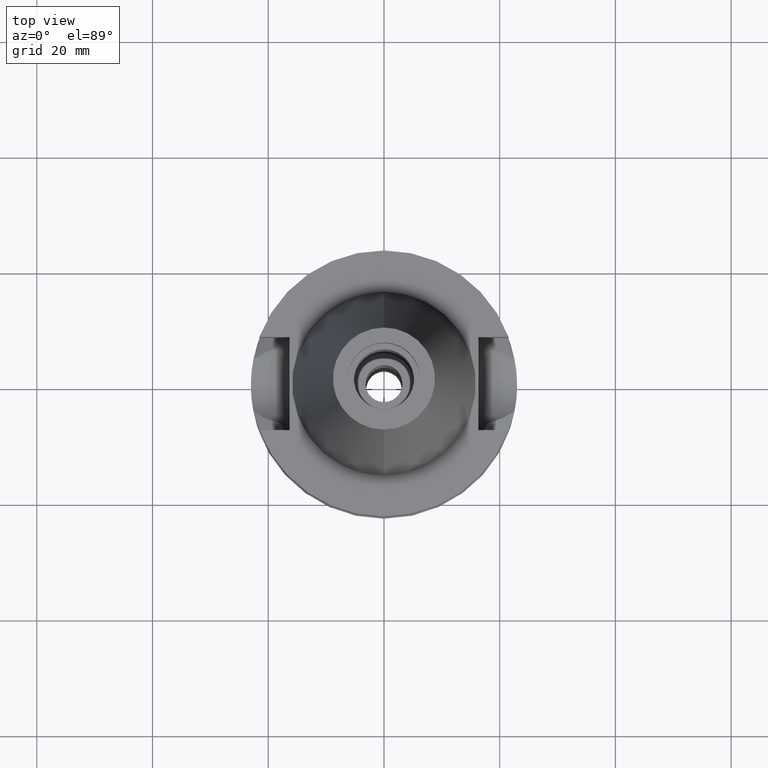
[diagram: clean part render]
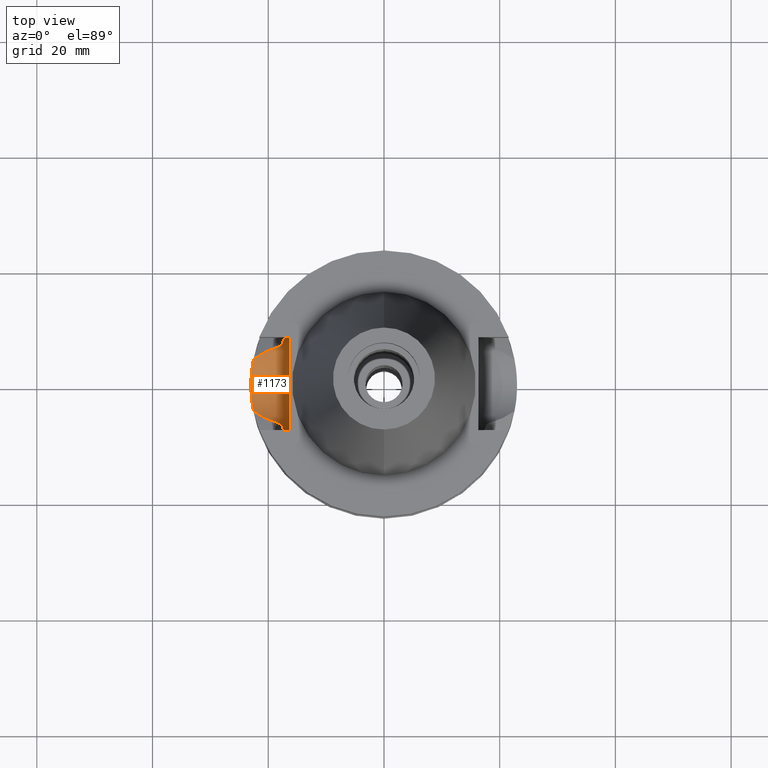
[diagram: same view with one face highlighted and labeled with its STEP entity id]
A machine part, top view. The second image highlights one B-rep face of the part: STEP entity #1173.
In plain terms, the highlighted cylindrical surface (partial cylindrical patch) has radius 8.05 mm, axis along (-1, 0, 0).
Its self-contained STEP definition (entity closure, byte-faithful):
#7 = CARTESIAN_POINT ( 'NONE',  ( -20.37105958657650717, 5.758959081755839371, -16.57485834277300896 ) ) ;
#10 = CARTESIAN_POINT ( 'NONE',  ( -22.88402643636988643, -2.325754021695328966, -18.65674074075245770 ) ) ;
#35 = CARTESIAN_POINT ( 'NONE',  ( -22.96114436732786146, -1.378457862027962388, -18.88353429848299214 ) ) ;
#36 = CARTESIAN_POINT ( 'NONE',  ( -20.57646176026337059, -5.660435152934573999, -16.67383415754710896 ) ) ;
#55 = CARTESIAN_POINT ( 'NONE',  ( -17.51267293753970478, -7.374837336396589116, -14.18047319991323896 ) ) ;
#57 = CARTESIAN_POINT ( 'NONE',  ( -18.96930827938999897, 8.050001278045002095, -10.94999977538999936 ) ) ;
#88 = CARTESIAN_POINT ( 'NONE',  ( -17.75928303705000033, -6.758398853744999712, -15.32339055352999857 ) ) ;
#121 = CARTESIAN_POINT ( 'NONE',  ( -17.62306403126441623, -7.108365558698733544, -14.74095341376021473 ) ) ;
#152 = VERTEX_POINT ( 'NONE', #2197 ) ;
#157 = EDGE_CURVE ( 'NONE', #630, #322, #2649, .T. ) ;
#175 = CARTESIAN_POINT ( 'NONE',  ( -16.29999999999999716, -8.050000000000000711, -10.94999999999999929 ) ) ;
#198 = DIRECTION ( 'NONE',  ( 1.000000000000000000, 0.0000000000000000000, 0.0000000000000000000 ) ) ;
#213 = CARTESIAN_POINT ( 'NONE',  ( -22.89849815869771987, -2.179392640264593339, -18.69965624314833263 ) ) ;
#235 = CARTESIAN_POINT ( 'NONE',  ( -22.95396285075072029, 1.531416406263037100, -18.86284724088618248 ) ) ;
#244 = CARTESIAN_POINT ( 'NONE',  ( -20.59862497873976395, -5.649607642145396902, -16.68451822106968763 ) ) ;
#267 = EDGE_CURVE ( 'NONE', #1930, #2862, #362, .T. ) ;
#277 = LINE ( 'NONE', #57, #2704 ) ;
#322 = VERTEX_POINT ( 'NONE', #2556 ) ;
#357 = CARTESIAN_POINT ( 'NONE',  ( -18.96933606546000206, -8.049994318143998129, -10.95000099914000025 ) ) ;
#362 = B_SPLINE_CURVE_WITH_KNOTS ( 'NONE', 3,
 ( #2885, #866, #1567, #1537, #1787, #885, #1555, #711, #1404, #1608, #1153, #1592, #2055, #1825, #728 ),
 .UNSPECIFIED., .F., .F.,
 ( 4, 2, 2, 1, 1, 1, 2, 2, 4 ),
 ( 0.0000000000000000000, 0.2499999999999890088, 0.3749999999999836242, 0.4374999999999807931, 0.4687499999999801825, 0.4843749999999797384, 0.4921874999999804046, 0.4999999999999810152, 1.000000000000000000 ),
 .UNSPECIFIED. ) ;
#373 = EDGE_LOOP ( 'NONE', ( #850, #2608, #2280, #2097, #1101, #1059, #1708, #1918, #1671, #398 ) ) ;
#398 = ORIENTED_EDGE ( 'NONE', *, *, #1591, .T. ) ;
#425 = CARTESIAN_POINT ( 'NONE',  ( -22.94868690431086122, -1.573057305262965055, -18.84731829897561539 ) ) ;
#438 = B_SPLINE_CURVE_WITH_KNOTS ( 'NONE', 3,
 ( #1513, #2884, #1985, #1300 ),
 .UNSPECIFIED., .F., .F.,
 ( 4, 4 ),
 ( 0.0000000000000000000, 1.000000000000000000 ),
 .UNSPECIFIED. ) ;
#443 = CARTESIAN_POINT ( 'NONE',  ( -22.89141392999098557, -2.251876405495350397, -18.67866006598378092 ) ) ;
#460 = CARTESIAN_POINT ( 'NONE',  ( -23.00137289315239641, -0.4076242066965087285, -18.99876958677882755 ) ) ;
#462 = CARTESIAN_POINT ( 'NONE',  ( -22.27195724436747781, -4.695828194929926092, -17.49326580463720049 ) ) ;
#463 = AXIS2_PLACEMENT_3D ( 'NONE', #495, #1389, #2293 ) ;
#469 = CARTESIAN_POINT ( 'NONE',  ( -18.28224336498320923, 6.597212184853886718, -15.57247962639817551 ) ) ;
#473 = CARTESIAN_POINT ( 'NONE',  ( -20.64598670963935589, -5.626336288312779210, -16.70735231758337846 ) ) ;
#486 = CARTESIAN_POINT ( 'NONE',  ( -22.70532447095174788, -3.756029773028041419, -18.12442173740278406 ) ) ;
#495 = CARTESIAN_POINT ( 'NONE',  ( -16.29999999999999716, 1.981478521019999946E-14, -10.94999999999999929 ) ) ;
#539 = FACE_OUTER_BOUND ( 'NONE', #373, .T. ) ;
#544 = B_SPLINE_CURVE_WITH_KNOTS ( 'NONE', 3,
 ( #2483, #462, #2034, #1147, #2712, #936, #2269, #473, #244, #36, #2725, #1603, #2507 ),
 .UNSPECIFIED., .F., .F.,
 ( 4, 2, 1, 1, 1, 2, 2, 4 ),
 ( 0.0000000000000000000, 0.2500000000000122680, 0.3750000000000187073, 0.4375000000000215938, 0.4687500000000229261, 0.4843750000000227596, 0.5000000000000225375, 1.000000000000000000 ),
 .UNSPECIFIED. ) ;
#559 = CARTESIAN_POINT ( 'NONE',  ( -17.42359123886436123, -7.582153974576828936, -13.65435555158421899 ) ) ;
#561 = CARTESIAN_POINT ( 'NONE',  ( -17.23729139246000130, -7.996491147606000105, -11.87660607723999995 ) ) ;
#567 = CARTESIAN_POINT ( 'NONE',  ( -16.29999999999999716, 1.981478521019999946E-14, -10.94999999999999929 ) ) ;
#621 = B_SPLINE_CURVE_WITH_KNOTS ( 'NONE', 3,
 ( #88, #1420, #121, #2568, #55, #1018, #1214, #2755, #952, #2367, #1637, #559, #2782, #2120, #1911 ),
 .UNSPECIFIED., .F., .F.,
 ( 4, 2, 2, 1, 1, 1, 2, 2, 4 ),
 ( 0.0000000000000000000, 0.2500000000000050515, 0.3750000000000075495, 0.4375000000000080491, 0.4687500000000077716, 0.4843750000000083822, 0.4921875000000081046, 0.5000000000000077716, 1.000000000000000000 ),
 .UNSPECIFIED. ) ;
#630 = VERTEX_POINT ( 'NONE', #2330 ) ;
#649 = CARTESIAN_POINT ( 'NONE',  ( -20.49989886104092207, 5.697507611570140185, -16.63693342957507326 ) ) ;
#660 = CARTESIAN_POINT ( 'NONE',  ( -22.87656963739355831, 2.398009204690335405, -18.63456619442488460 ) ) ;
#662 = VERTEX_POINT ( 'NONE', #1446 ) ;
#668 = CARTESIAN_POINT ( 'NONE',  ( -22.86974498650314658, 2.462640222853216709, -18.61429980678051521 ) ) ;
#680 = CARTESIAN_POINT ( 'NONE',  ( -22.85301127379106845, 2.614619028431492964, -18.56452842529814262 ) ) ;
#681 = CARTESIAN_POINT ( 'NONE',  ( -17.23729139246000130, -7.996491147606000105, -11.87660607723999995 ) ) ;
#711 = CARTESIAN_POINT ( 'NONE',  ( -17.40246475577188789, 7.630563838159316603, -13.51509474698682034 ) ) ;
#728 = CARTESIAN_POINT ( 'NONE',  ( -17.75928303705000033, 6.758398853744999712, -15.32339055352999857 ) ) ;
#850 = ORIENTED_EDGE ( 'NONE', *, *, #1642, .T. ) ;
#866 = CARTESIAN_POINT ( 'NONE',  ( -17.25277258100026501, 7.963111049424388632, -12.16468845982267766 ) ) ;
#885 = CARTESIAN_POINT ( 'NONE',  ( -17.36837036077780283, 7.707981441125066446, -13.27282778250319062 ) ) ;
#898 = CARTESIAN_POINT ( 'NONE',  ( -22.80396809543739778, 3.013367451515033490, -18.41713961940294197 ) ) ;
#905 = CARTESIAN_POINT ( 'NONE',  ( -16.29999999999999716, 8.050000000000000711, -10.94999999999999929 ) ) ;
#936 = CARTESIAN_POINT ( 'NONE',  ( -20.87994658972001361, -5.509147439525087009, -16.82019445110367428 ) ) ;
#943 = CARTESIAN_POINT ( 'NONE',  ( -20.52709696620491542, 5.684391039338787976, -16.65004078365418039 ) ) ;
#952 = CARTESIAN_POINT ( 'NONE',  ( -17.43107261325455681, -7.564952459189426826, -13.70218543622962493 ) ) ;
#958 = B_SPLINE_CURVE_WITH_KNOTS ( 'NONE', 3,
 ( #2062, #2256, #1108, #2724, #898, #1324, #680, #668, #660, #2246, #1365, #2468, #235, #1602, #2494, #460, #2457, #35, #425, #1341, #2711, #213, #443, #2025, #10, #1818, #486, #2012 ),
 .UNSPECIFIED., .F., .F.,
 ( 4, 2, 2, 1, 1, 2, 2, 2, 2, 2, 2, 1, 1, 2, 2, 4 ),
 ( 0.0000000000000000000, 0.1250000000000028311, 0.1875000000000044686, 0.2187500000000052458, 0.2343750000000055234, 0.2421875000000056899, 0.2500000000000058287, 0.3750000000000051070, 0.5000000000000043299, 0.6250000000000034417, 0.6875000000000031086, 0.7187500000000031086, 0.7343750000000028866, 0.7421875000000027756, 0.7500000000000027756, 1.000000000000000000 ),
 .UNSPECIFIED. ) ;
#1018 = CARTESIAN_POINT ( 'NONE',  ( -17.47649152886676660, -7.459745426285464553, -13.97656883011597984 ) ) ;
#1039 = B_SPLINE_CURVE_WITH_KNOTS ( 'NONE', 3,
 ( #561, #2383, #1251, #357 ),
 .UNSPECIFIED., .F., .F.,
 ( 4, 4 ),
 ( 0.0000000000000000000, 1.000000000000000000 ),
 .UNSPECIFIED. ) ;
#1042 = VERTEX_POINT ( 'NONE', #2706 ) ;
#1059 = ORIENTED_EDGE ( 'NONE', *, *, #2461, .T. ) ;
#1100 = CARTESIAN_POINT ( 'NONE',  ( -17.75928303705000033, 6.758398853744999712, -15.32339055352999857 ) ) ;
#1101 = ORIENTED_EDGE ( 'NONE', *, *, #1946, .F. ) ;
#1108 = CARTESIAN_POINT ( 'NONE',  ( -22.69786555316973420, 3.742247097983885773, -18.08863856139490522 ) ) ;
#1119 = EDGE_CURVE ( 'NONE', #2862, #152, #1765, .T. ) ;
#1147 = CARTESIAN_POINT ( 'NONE',  ( -21.45852312804064610, -5.196222814916794164, -17.09964353470252618 ) ) ;
#1153 = CARTESIAN_POINT ( 'NONE',  ( -17.41936507454833460, 7.591859783524955496, -13.62698761801225444 ) ) ;
#1173 = ADVANCED_FACE ( 'NONE', ( #539 ), #1371, .F. ) ;
#1214 = CARTESIAN_POINT ( 'NONE',  ( -17.45914586045512706, -7.500150295201239992, -13.87559705986645220 ) ) ;
#1251 = CARTESIAN_POINT ( 'NONE',  ( -18.30531220829895389, -8.049999956197662954, -11.30291241008408853 ) ) ;
#1300 = CARTESIAN_POINT ( 'NONE',  ( -17.23728651699000025, 7.996501750753998827, -11.87660739304999957 ) ) ;
#1303 = CARTESIAN_POINT ( 'NONE',  ( -20.18800335572453264, 5.844315149746736715, -16.48670560040008937 ) ) ;
#1324 = CARTESIAN_POINT ( 'NONE',  ( -22.83728033037878902, 2.746791842467859457, -18.51747308865574126 ) ) ;
#1330 = CARTESIAN_POINT ( 'NONE',  ( -19.47428298648703660, 6.152215776122752722, -16.14359599810893897 ) ) ;
#1341 = CARTESIAN_POINT ( 'NONE',  ( -22.92632424490862775, -1.864438774914492170, -18.78174817360973492 ) ) ;
#1365 = CARTESIAN_POINT ( 'NONE',  ( -22.88310326431275854, 2.334973900067765396, -18.65396240018893081 ) ) ;
#1371 = CYLINDRICAL_SURFACE ( 'NONE', #463, 8.050000000000000711 ) ;
#1389 = DIRECTION ( 'NONE',  ( -1.000000000000000000, 0.0000000000000000000, 0.0000000000000000000 ) ) ;
#1404 = CARTESIAN_POINT ( 'NONE',  ( -17.41224899684928928, 7.608177767702897221, -13.58036371481314575 ) ) ;
#1420 = CARTESIAN_POINT ( 'NONE',  ( -17.68720000922477453, -6.947813968328321543, -15.03067878273872182 ) ) ;
#1446 = CARTESIAN_POINT ( 'NONE',  ( -18.96930827938999897, 8.050001278045002095, -10.94999977538999936 ) ) ;
#1453 = EDGE_CURVE ( 'NONE', #630, #2183, #1760, .T. ) ;
#1513 = CARTESIAN_POINT ( 'NONE',  ( -18.96930827938999897, 8.050001278045002095, -10.94999977538999936 ) ) ;
#1537 = CARTESIAN_POINT ( 'NONE',  ( -17.32216776222009358, 7.811451361365458368, -12.90108491452633999 ) ) ;
#1555 = CARTESIAN_POINT ( 'NONE',  ( -17.38352545373925295, 7.673723835802980453, -13.38458801138314413 ) ) ;
#1557 = VERTEX_POINT ( 'NONE', #681 ) ;
#1567 = CARTESIAN_POINT ( 'NONE',  ( -17.27592865030907632, 7.913379399320649377, -12.45762904624743861 ) ) ;
#1591 = EDGE_CURVE ( 'NONE', #1042, #1913, #544, .T. ) ;
#1592 = CARTESIAN_POINT ( 'NONE',  ( -17.42098403767593595, 7.588143148039199204, -13.63750035191579713 ) ) ;
#1602 = CARTESIAN_POINT ( 'NONE',  ( -22.99270542384788740, 0.7497304644855727895, -18.97473002023083666 ) ) ;
#1603 = CARTESIAN_POINT ( 'NONE',  ( -18.80524497703759934, -6.436012791381857667, -15.82158836313931438 ) ) ;
#1608 = CARTESIAN_POINT ( 'NONE',  ( -17.41650965518126171, 7.598410173988923155, -13.60833792199490233 ) ) ;
#1637 = CARTESIAN_POINT ( 'NONE',  ( -17.42467565604092528, -7.579662016889206377, -13.66132789504542444 ) ) ;
#1642 = EDGE_CURVE ( 'NONE', #1913, #1557, #621, .T. ) ;
#1671 = ORIENTED_EDGE ( 'NONE', *, *, #2181, .T. ) ;
#1682 = VECTOR ( 'NONE', #2588, 999.9999999999998863 ) ;
#1708 = ORIENTED_EDGE ( 'NONE', *, *, #267, .T. ) ;
#1760 = CIRCLE ( 'NONE', #1799, 8.050000000000000711 ) ;
#1765 = B_SPLINE_CURVE_WITH_KNOTS ( 'NONE', 3,
 ( #1100, #469, #2041, #1330, #2242, #2262, #1303, #7, #2435, #649, #943, #2557, #2080, #2501 ),
 .UNSPECIFIED., .F., .F.,
 ( 4, 2, 2, 1, 1, 2, 2, 4 ),
 ( 0.0000000000000000000, 0.2500000000000038858, 0.3750000000000065503, 0.4375000000000079936, 0.4687500000000082157, 0.4843750000000076605, 0.5000000000000069944, 1.000000000000000000 ),
 .UNSPECIFIED. ) ;
#1787 = CARTESIAN_POINT ( 'NONE',  ( -17.33949830084840116, 7.772922946710772329, -13.04957045132685778 ) ) ;
#1799 = AXIS2_PLACEMENT_3D ( 'NONE', #567, #198, #1997 ) ;
#1818 = CARTESIAN_POINT ( 'NONE',  ( -22.81271620766460018, -3.020658728047468156, -18.44495605090872203 ) ) ;
#1825 = CARTESIAN_POINT ( 'NONE',  ( -17.61516098075958681, 7.137113464212237801, -14.73814568277044224 ) ) ;
#1911 = CARTESIAN_POINT ( 'NONE',  ( -17.23729139246000130, -7.996491147606000105, -11.87660607723999995 ) ) ;
#1913 = VERTEX_POINT ( 'NONE', #2727 ) ;
#1915 = CARTESIAN_POINT ( 'NONE',  ( -17.23728651699000025, 7.996501750753998827, -11.87660739304999957 ) ) ;
#1918 = ORIENTED_EDGE ( 'NONE', *, *, #1119, .T. ) ;
#1930 = VERTEX_POINT ( 'NONE', #1915 ) ;
#1946 = EDGE_CURVE ( 'NONE', #662, #2183, #277, .T. ) ;
#1985 = CARTESIAN_POINT ( 'NONE',  ( -17.72880024931674825, 8.027186591141296290, -11.61172483643392361 ) ) ;
#1997 = DIRECTION ( 'NONE',  ( 0.0000000000000000000, 0.0000000000000000000, -1.000000000000000000 ) ) ;
#2012 = CARTESIAN_POINT ( 'NONE',  ( -22.55969031021000148, -4.488072640469000341, -17.63279163029000074 ) ) ;
#2025 = CARTESIAN_POINT ( 'NONE',  ( -22.88661451783490008, -2.300171273106836445, -18.66442453301172577 ) ) ;
#2034 = CARTESIAN_POINT ( 'NONE',  ( -21.96069881559481729, -4.899345948900370118, -17.34251889771753241 ) ) ;
#2041 = CARTESIAN_POINT ( 'NONE',  ( -18.77636339333411897, 6.424692644322583135, -15.80887001433192651 ) ) ;
#2055 = CARTESIAN_POINT ( 'NONE',  ( -17.50281428995427291, 7.400176627129031459, -14.16641912299382788 ) ) ;
#2062 = CARTESIAN_POINT ( 'NONE',  ( -22.55969031021000148, 4.488072640469000341, -17.63279163029000074 ) ) ;
#2080 = CARTESIAN_POINT ( 'NONE',  ( -21.98419990046046379, 4.903601279184830908, -17.35372820621149614 ) ) ;
#2097 = ORIENTED_EDGE ( 'NONE', *, *, #1453, .T. ) ;
#2120 = CARTESIAN_POINT ( 'NONE',  ( -17.26825680502516391, -7.929743286903933708, -12.45264798142659046 ) ) ;
#2181 = EDGE_CURVE ( 'NONE', #152, #1042, #958, .T. ) ;
#2183 = VERTEX_POINT ( 'NONE', #905 ) ;
#2197 = CARTESIAN_POINT ( 'NONE',  ( -22.55969031021000148, 4.488072640469000341, -17.63279163029000074 ) ) ;
#2242 = CARTESIAN_POINT ( 'NONE',  ( -19.69971277597577242, 6.059106177310484398, -16.25186680077824875 ) ) ;
#2246 = CARTESIAN_POINT ( 'NONE',  ( -22.88104230681562612, 2.355036454355307285, -18.64784444120137863 ) ) ;
#2256 = CARTESIAN_POINT ( 'NONE',  ( -22.63371219333480511, 4.115995160150487386, -17.88267384298432816 ) ) ;
#2262 = CARTESIAN_POINT ( 'NONE',  ( -20.02704234786550685, 5.916416474135703929, -16.40926102278092813 ) ) ;
#2269 = CARTESIAN_POINT ( 'NONE',  ( -20.71675361814191874, -5.591348021754348530, -16.74147505633646915 ) ) ;
#2280 = ORIENTED_EDGE ( 'NONE', *, *, #157, .F. ) ;
#2293 = DIRECTION ( 'NONE',  ( 0.0000000000000000000, 0.0000000000000000000, -1.000000000000000000 ) ) ;
#2330 = CARTESIAN_POINT ( 'NONE',  ( -16.29999999999999716, -8.050000000000000711, -10.94999999999999929 ) ) ;
#2367 = CARTESIAN_POINT ( 'NONE',  ( -17.42722512597731566, -7.573801175395783680, -13.67765668666308443 ) ) ;
#2383 = CARTESIAN_POINT ( 'NONE',  ( -17.72796398396561912, -8.027134088956932700, -11.61217789861126448 ) ) ;
#2435 = CARTESIAN_POINT ( 'NONE',  ( -20.44849834015944268, 5.722121750035968013, -16.61216632518716807 ) ) ;
#2457 = CARTESIAN_POINT ( 'NONE',  ( -22.99116382662537106, -0.7953677957809910382, -18.97024564709867889 ) ) ;
#2461 = EDGE_CURVE ( 'NONE', #662, #1930, #438, .T. ) ;
#2468 = CARTESIAN_POINT ( 'NONE',  ( -22.92470154566406038, 1.923074849751592375, -18.77739204128479500 ) ) ;
#2483 = CARTESIAN_POINT ( 'NONE',  ( -22.55969031021000148, -4.488072640469000341, -17.63279163029000074 ) ) ;
#2494 = CARTESIAN_POINT ( 'NONE',  ( -23.00218321353049333, 0.3574847674060553926, -19.00115233963521533 ) ) ;
#2501 = CARTESIAN_POINT ( 'NONE',  ( -22.55969031021000148, 4.488072640469000341, -17.63279163029000074 ) ) ;
#2507 = CARTESIAN_POINT ( 'NONE',  ( -17.75928303705000033, -6.758398853744999712, -15.32339055352999857 ) ) ;
#2510 = EDGE_CURVE ( 'NONE', #1557, #322, #1039, .T. ) ;
#2556 = CARTESIAN_POINT ( 'NONE',  ( -18.96933606546000206, -8.049994318143998129, -10.95000099914000025 ) ) ;
#2557 = CARTESIAN_POINT ( 'NONE',  ( -21.31462360027769165, 5.302220032174364661, -17.02962008095352786 ) ) ;
#2568 = CARTESIAN_POINT ( 'NONE',  ( -17.53878063912122087, -7.312766996033536415, -14.31902968776932461 ) ) ;
#2588 = DIRECTION ( 'NONE',  ( -0.9999999999976646459, 2.128565317447924271E-06, -3.743031135136864392E-07 ) ) ;
#2608 = ORIENTED_EDGE ( 'NONE', *, *, #2510, .T. ) ;
#2649 = LINE ( 'NONE', #175, #1682 ) ;
#2682 = CARTESIAN_POINT ( 'NONE',  ( -17.75928303705000033, 6.758398853744999712, -15.32339055352999857 ) ) ;
#2704 = VECTOR ( 'NONE', #2758, 1000.000000000000227 ) ;
#2706 = CARTESIAN_POINT ( 'NONE',  ( -22.55969031021000148, -4.488072640469000341, -17.63279163029000074 ) ) ;
#2711 = CARTESIAN_POINT ( 'NONE',  ( -22.91422379898832418, -2.009999252541759152, -18.74615257596152063 ) ) ;
#2712 = CARTESIAN_POINT ( 'NONE',  ( -21.19861327316478139, -5.342559778359214029, -16.97402077662893305 ) ) ;
#2724 = CARTESIAN_POINT ( 'NONE',  ( -22.77929280798732847, 3.194069245020894954, -18.34195103617187783 ) ) ;
#2725 = CARTESIAN_POINT ( 'NONE',  ( -19.73581315135204761, -6.068389620937571394, -16.26864805167641848 ) ) ;
#2727 = CARTESIAN_POINT ( 'NONE',  ( -17.75928303705000033, -6.758398853744999712, -15.32339055352999857 ) ) ;
#2755 = CARTESIAN_POINT ( 'NONE',  ( -17.44021306017666362, -7.543900218439729244, -13.75966599868678664 ) ) ;
#2758 = DIRECTION ( 'NONE',  ( 0.9999999999998817612, -4.787925566819908758E-07, -8.414440758061848972E-08 ) ) ;
#2782 = CARTESIAN_POINT ( 'NONE',  ( -17.32987616369755202, -7.797406376591791144, -13.04850448775211369 ) ) ;
#2862 = VERTEX_POINT ( 'NONE', #2682 ) ;
#2884 = CARTESIAN_POINT ( 'NONE',  ( -18.30614083678341686, 8.050000009834196391, -11.30245587922251715 ) ) ;
#2885 = CARTESIAN_POINT ( 'NONE',  ( -17.23728651699000025, 7.996501750753998827, -11.87660739304999957 ) ) ;